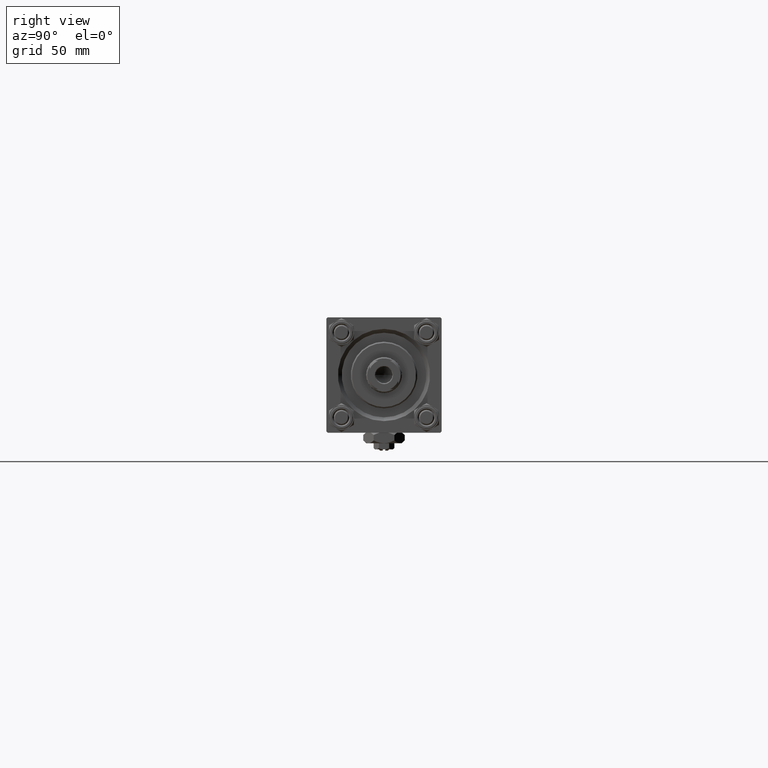
[diagram: clean part render]
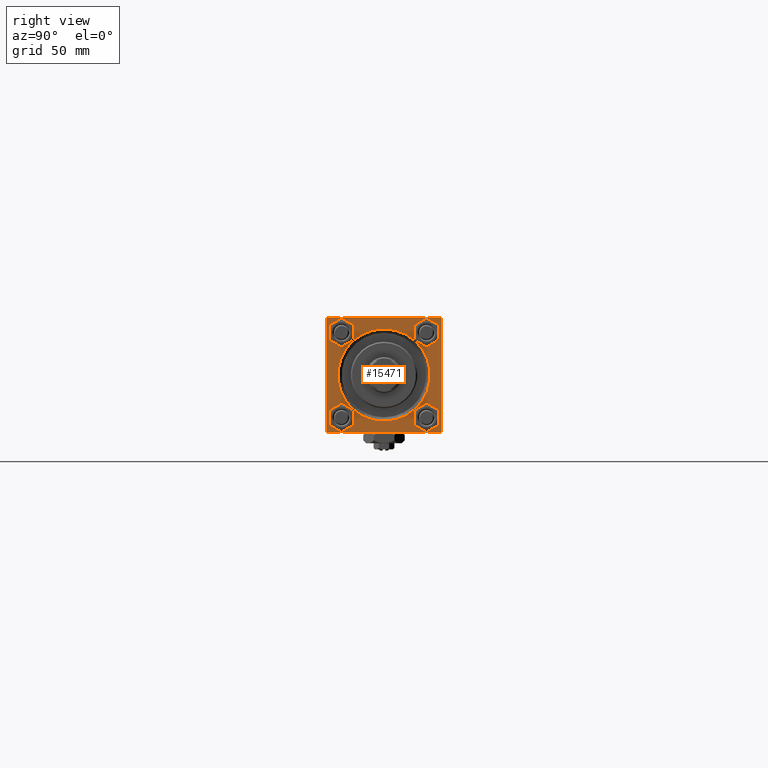
[diagram: same view with one face highlighted and labeled with its STEP entity id]
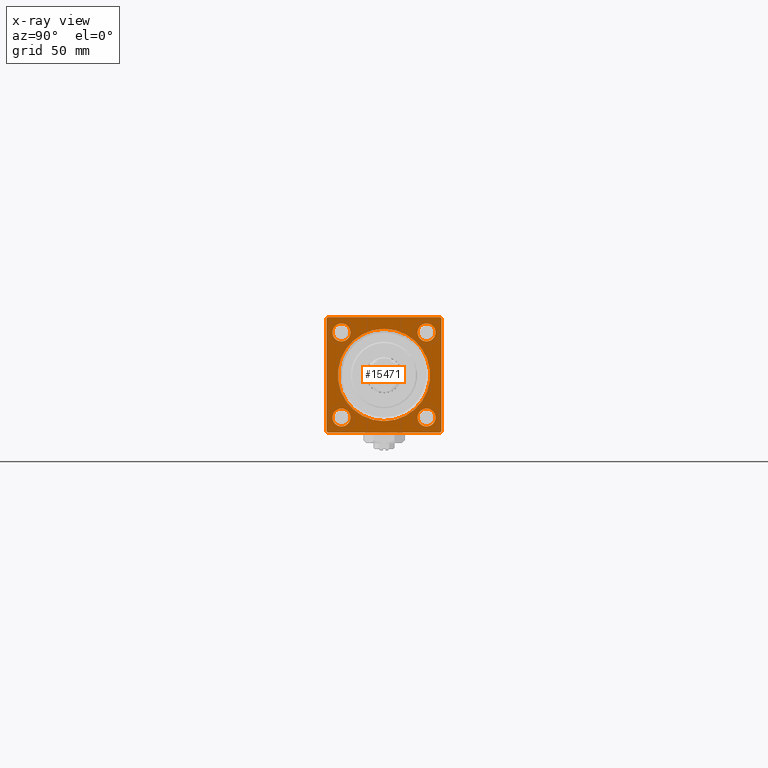
[diagram: x-ray of the same camera — body ghosted, the highlighted face saturated]
A machine part, right view. The second image highlights one B-rep face of the part: STEP entity #15471.
The next image is the same camera in x-ray: the body ghosted, the highlighted face saturated — about 0% of this face is hidden behind the body in this view.
In plain terms, the highlighted planar face has unit normal (-1, 0, 0).
Its self-contained STEP definition (entity closure, byte-faithful):
#45 = ORIENTED_EDGE ( 'NONE', *, *, #5214, .T. ) ;
#60 = EDGE_LOOP ( 'NONE', ( #3234, #50077 ) ) ;
#155 = VERTEX_POINT ( 'NONE', #23417 ) ;
#251 = EDGE_CURVE ( 'NONE', #155, #48153, #30897, .T. ) ;
#597 = DIRECTION ( 'NONE',  ( -1.000000000000000000, 0.000000000000000000, -0.000000000000000000 ) ) ;
#707 = DIRECTION ( 'NONE',  ( 0.000000000000000000, -1.000000000000000000, -2.312964634635742957E-16 ) ) ;
#1269 = CARTESIAN_POINT ( 'NONE',  ( 227.9999999999999716, -16.59999999999999076, 16.60000000000000853 ) ) ;
#1840 = AXIS2_PLACEMENT_3D ( 'NONE', #25262, #33640, #42038 ) ;
#2723 = DIRECTION ( 'NONE',  ( -1.000000000000000000, 0.000000000000000000, -0.000000000000000000 ) ) ;
#2798 = DIRECTION ( 'NONE',  ( 0.000000000000000000, 0.000000000000000000, 1.000000000000000000 ) ) ;
#3152 = EDGE_CURVE ( 'NONE', #6648, #32082, #46947, .T. ) ;
#3158 = VERTEX_POINT ( 'NONE', #16519 ) ;
#3194 = VECTOR ( 'NONE', #20177, 1000.000000000000000 ) ;
#3234 = ORIENTED_EDGE ( 'NONE', *, *, #18331, .T. ) ;
#3667 = LINE ( 'NONE', #19665, #24158 ) ;
#4041 = CARTESIAN_POINT ( 'NONE',  ( 227.9999999999999716, -16.59999999999999076, 13.09999999999997655 ) ) ;
#4297 = CARTESIAN_POINT ( 'NONE',  ( 227.9999999999999716, 16.59999999999999787, 16.60000000000000497 ) ) ;
#4561 = ORIENTED_EDGE ( 'NONE', *, *, #49443, .T. ) ;
#5005 = DIRECTION ( 'NONE',  ( -0.000000000000000000, -0.7071067811865474617, -0.7071067811865474617 ) ) ;
#5214 = EDGE_CURVE ( 'NONE', #22533, #34364, #28836, .T. ) ;
#5223 = ORIENTED_EDGE ( 'NONE', *, *, #50615, .T. ) ;
#5445 = AXIS2_PLACEMENT_3D ( 'NONE', #22400, #2723, #17953 ) ;
#5799 = EDGE_LOOP ( 'NONE', ( #5223, #15051 ) ) ;
#6468 = FACE_BOUND ( 'NONE', #21269, .T. ) ;
#6648 = VERTEX_POINT ( 'NONE', #34011 ) ;
#7162 = VERTEX_POINT ( 'NONE', #4041 ) ;
#7224 = EDGE_CURVE ( 'NONE', #48153, #155, #11855, .T. ) ;
#7312 = VECTOR ( 'NONE', #5005, 1000.000000000000114 ) ;
#7322 = LINE ( 'NONE', #27509, #7965 ) ;
#7460 = AXIS2_PLACEMENT_3D ( 'NONE', #47774, #7874, #32241 ) ;
#7799 = LINE ( 'NONE', #23790, #50780 ) ;
#7874 = DIRECTION ( 'NONE',  ( -1.000000000000000000, 0.000000000000000000, -0.000000000000000000 ) ) ;
#7965 = VECTOR ( 'NONE', #32214, 1000.000000000000000 ) ;
#8639 = VECTOR ( 'NONE', #44062, 1000.000000000000000 ) ;
#8939 = CIRCLE ( 'NONE', #38239, 3.500000000000031086 ) ;
#9467 = VERTEX_POINT ( 'NONE', #37028 ) ;
#9507 = CIRCLE ( 'NONE', #38790, 3.500000000000031086 ) ;
#10003 = VERTEX_POINT ( 'NONE', #35810 ) ;
#10321 = CARTESIAN_POINT ( 'NONE',  ( 227.9999999999999716, 22.00000000000000355, -22.49999999999999645 ) ) ;
#11242 = CARTESIAN_POINT ( 'NONE',  ( 227.9999999999999716, -22.49999999999999645, -21.99999999999995026 ) ) ;
#11855 = CIRCLE ( 'NONE', #1840, 3.500000000000031086 ) ;
#12128 = DIRECTION ( 'NONE',  ( 0.000000000000000000, 0.000000000000000000, 1.000000000000000000 ) ) ;
#12148 = AXIS2_PLACEMENT_3D ( 'NONE', #32898, #28969, #25290 ) ;
#12167 = EDGE_CURVE ( 'NONE', #29171, #7162, #9507, .T. ) ;
#13518 = DIRECTION ( 'NONE',  ( 0.000000000000000000, 0.000000000000000000, 1.000000000000000000 ) ) ;
#14174 = ORIENTED_EDGE ( 'NONE', *, *, #26700, .T. ) ;
#14743 = EDGE_CURVE ( 'NONE', #25073, #45076, #23865, .T. ) ;
#14832 = EDGE_CURVE ( 'NONE', #45076, #25073, #50702, .T. ) ;
#15051 = ORIENTED_EDGE ( 'NONE', *, *, #29678, .T. ) ;
#15121 = EDGE_CURVE ( 'NONE', #22533, #15320, #7322, .T. ) ;
#15250 = CARTESIAN_POINT ( 'NONE',  ( 227.9999999999999716, -16.59999999999999076, 20.10000000000003695 ) ) ;
#15320 = VERTEX_POINT ( 'NONE', #46151 ) ;
#15376 = VERTEX_POINT ( 'NONE', #22774 ) ;
#15466 = VERTEX_POINT ( 'NONE', #26643 ) ;
#15471 = ADVANCED_FACE ( 'NONE', ( #19044, #46352, #18532, #6468, #42644, #38191 ), #50801, .F. ) ;
#16097 = DIRECTION ( 'NONE',  ( 0.000000000000000000, 0.000000000000000000, 1.000000000000000000 ) ) ;
#16284 = CARTESIAN_POINT ( 'NONE',  ( 227.9999999999999716, -22.49999999999999645, 21.99999999999999289 ) ) ;
#16519 = CARTESIAN_POINT ( 'NONE',  ( 227.9999999999999716, -22.49999999999999645, 21.99999999999999289 ) ) ;
#17384 = CARTESIAN_POINT ( 'NONE',  ( 227.9999999999999716, 0.000000000000000000, -18.00000000000004263 ) ) ;
#17586 = CIRCLE ( 'NONE', #41012, 3.500000000000031086 ) ;
#17765 = CARTESIAN_POINT ( 'NONE',  ( 227.9999999999999716, 16.59999999999999787, 13.09999999999997300 ) ) ;
#17953 = DIRECTION ( 'NONE',  ( 0.000000000000000000, 0.000000000000000000, 1.000000000000000000 ) ) ;
#18331 = EDGE_CURVE ( 'NONE', #32082, #6648, #23982, .T. ) ;
#18532 = FACE_BOUND ( 'NONE', #60, .T. ) ;
#19044 = FACE_BOUND ( 'NONE', #5799, .T. ) ;
#19665 = CARTESIAN_POINT ( 'NONE',  ( 227.9999999999999716, 21.99999999999997513, 22.50000000000000355 ) ) ;
#20177 = DIRECTION ( 'NONE',  ( 0.000000000000000000, 0.000000000000000000, -1.000000000000000000 ) ) ;
#21211 = DIRECTION ( 'NONE',  ( 0.000000000000000000, 0.000000000000000000, -1.000000000000000000 ) ) ;
#21269 = EDGE_LOOP ( 'NONE', ( #42969, #37765 ) ) ;
#22321 = VERTEX_POINT ( 'NONE', #23255 ) ;
#22400 = CARTESIAN_POINT ( 'NONE',  ( 227.9999999999999716, 0.000000000000000000, 0.000000000000000000 ) ) ;
#22533 = VERTEX_POINT ( 'NONE', #10321 ) ;
#22682 = VECTOR ( 'NONE', #48286, 1000.000000000000114 ) ;
#22774 = CARTESIAN_POINT ( 'NONE',  ( 227.9999999999999716, -16.59999999999999076, -20.10000000000003695 ) ) ;
#23255 = CARTESIAN_POINT ( 'NONE',  ( 227.9999999999999716, -16.59999999999999076, -13.09999999999997655 ) ) ;
#23417 = CARTESIAN_POINT ( 'NONE',  ( 227.9999999999999716, 16.59999999999999787, -20.10000000000003340 ) ) ;
#23790 = CARTESIAN_POINT ( 'NONE',  ( 227.9999999999999716, 22.50000000000000355, 22.50000000000000355 ) ) ;
#23865 = CIRCLE ( 'NONE', #12148, 18.00000000000004263 ) ;
#23982 = CIRCLE ( 'NONE', #34014, 3.500000000000031086 ) ;
#24107 = LINE ( 'NONE', #40091, #3194 ) ;
#24158 = VECTOR ( 'NONE', #35654, 1000.000000000000000 ) ;
#25073 = VERTEX_POINT ( 'NONE', #46448 ) ;
#25262 = CARTESIAN_POINT ( 'NONE',  ( 227.9999999999999716, 16.59999999999999787, -16.60000000000000497 ) ) ;
#25290 = DIRECTION ( 'NONE',  ( 0.000000000000000000, 0.000000000000000000, 1.000000000000000000 ) ) ;
#25387 = DIRECTION ( 'NONE',  ( -1.000000000000000000, 0.000000000000000000, -0.000000000000000000 ) ) ;
#26174 = EDGE_CURVE ( 'NONE', #9467, #15466, #3667, .T. ) ;
#26431 = ORIENTED_EDGE ( 'NONE', *, *, #15121, .F. ) ;
#26643 = CARTESIAN_POINT ( 'NONE',  ( 227.9999999999999716, 21.99999999999997513, 22.50000000000000355 ) ) ;
#26700 = EDGE_CURVE ( 'NONE', #3158, #33815, #24107, .T. ) ;
#27187 = AXIS2_PLACEMENT_3D ( 'NONE', #30325, #30069, #50541 ) ;
#27509 = CARTESIAN_POINT ( 'NONE',  ( 227.9999999999999716, 22.50000000000000355, -22.49999999999999645 ) ) ;
#27563 = AXIS2_PLACEMENT_3D ( 'NONE', #31546, #597, #12128 ) ;
#28282 = AXIS2_PLACEMENT_3D ( 'NONE', #30853, #38708, #2798 ) ;
#28327 = CARTESIAN_POINT ( 'NONE',  ( 227.9999999999999716, 22.50000000000000355, -21.99999999999999645 ) ) ;
#28836 = LINE ( 'NONE', #28327, #22682 ) ;
#28969 = DIRECTION ( 'NONE',  ( -1.000000000000000000, 0.000000000000000000, -0.000000000000000000 ) ) ;
#29171 = VERTEX_POINT ( 'NONE', #15250 ) ;
#29678 = EDGE_CURVE ( 'NONE', #22321, #15376, #17586, .T. ) ;
#30069 = DIRECTION ( 'NONE',  ( -1.000000000000000000, 0.000000000000000000, -0.000000000000000000 ) ) ;
#30325 = CARTESIAN_POINT ( 'NONE',  ( 227.9999999999999716, 0.000000000000000000, 0.000000000000000000 ) ) ;
#30833 = ORIENTED_EDGE ( 'NONE', *, *, #34297, .F. ) ;
#30853 = CARTESIAN_POINT ( 'NONE',  ( 227.9999999999999716, -16.59999999999999076, -16.60000000000000853 ) ) ;
#30897 = CIRCLE ( 'NONE', #27563, 3.500000000000031086 ) ;
#31211 = VECTOR ( 'NONE', #21211, 1000.000000000000000 ) ;
#31313 = DIRECTION ( 'NONE',  ( -1.000000000000000000, 0.000000000000000000, -0.000000000000000000 ) ) ;
#31546 = CARTESIAN_POINT ( 'NONE',  ( 227.9999999999999716, 16.59999999999999787, -16.60000000000000497 ) ) ;
#31599 = ORIENTED_EDGE ( 'NONE', *, *, #42482, .T. ) ;
#32082 = VERTEX_POINT ( 'NONE', #17765 ) ;
#32214 = DIRECTION ( 'NONE',  ( 0.000000000000000000, -1.000000000000000000, -7.709882115452476934E-17 ) ) ;
#32241 = DIRECTION ( 'NONE',  ( 0.000000000000000000, 0.000000000000000000, 1.000000000000000000 ) ) ;
#32898 = CARTESIAN_POINT ( 'NONE',  ( 227.9999999999999716, 0.000000000000000000, 0.000000000000000000 ) ) ;
#33640 = DIRECTION ( 'NONE',  ( -1.000000000000000000, 0.000000000000000000, -0.000000000000000000 ) ) ;
#33815 = VERTEX_POINT ( 'NONE', #11242 ) ;
#33998 = ORIENTED_EDGE ( 'NONE', *, *, #35037, .T. ) ;
#34011 = CARTESIAN_POINT ( 'NONE',  ( 227.9999999999999716, 16.59999999999999787, 20.10000000000003340 ) ) ;
#34014 = AXIS2_PLACEMENT_3D ( 'NONE', #4297, #47876, #47091 ) ;
#34297 = EDGE_CURVE ( 'NONE', #9467, #34364, #41145, .T. ) ;
#34364 = VERTEX_POINT ( 'NONE', #34807 ) ;
#34807 = CARTESIAN_POINT ( 'NONE',  ( 227.9999999999999716, 22.50000000000000355, -21.99999999999998224 ) ) ;
#35037 = EDGE_CURVE ( 'NONE', #33815, #15320, #48542, .T. ) ;
#35636 = ORIENTED_EDGE ( 'NONE', *, *, #7224, .T. ) ;
#35654 = DIRECTION ( 'NONE',  ( 0.000000000000000000, -0.7071067811865672237, 0.7071067811865279218 ) ) ;
#35810 = CARTESIAN_POINT ( 'NONE',  ( 227.9999999999999716, -21.99999999999998224, 22.49999999999999289 ) ) ;
#37028 = CARTESIAN_POINT ( 'NONE',  ( 227.9999999999999716, 22.50000000000000355, 22.00000000000000355 ) ) ;
#37765 = ORIENTED_EDGE ( 'NONE', *, *, #12167, .T. ) ;
#37943 = EDGE_LOOP ( 'NONE', ( #14174, #33998, #26431, #45, #30833, #39774, #31599, #4561 ) ) ;
#38191 = FACE_OUTER_BOUND ( 'NONE', #37943, .T. ) ;
#38239 = AXIS2_PLACEMENT_3D ( 'NONE', #41309, #41837, #13518 ) ;
#38708 = DIRECTION ( 'NONE',  ( -1.000000000000000000, 0.000000000000000000, -0.000000000000000000 ) ) ;
#38790 = AXIS2_PLACEMENT_3D ( 'NONE', #1269, #25387, #44548 ) ;
#39774 = ORIENTED_EDGE ( 'NONE', *, *, #26174, .T. ) ;
#39856 = CARTESIAN_POINT ( 'NONE',  ( 227.9999999999999716, -21.99999999999996803, -22.50000000000000000 ) ) ;
#40091 = CARTESIAN_POINT ( 'NONE',  ( 227.9999999999999716, -22.49999999999999645, 22.49999999999999289 ) ) ;
#41012 = AXIS2_PLACEMENT_3D ( 'NONE', #51268, #31313, #16097 ) ;
#41145 = LINE ( 'NONE', #45092, #31211 ) ;
#41309 = CARTESIAN_POINT ( 'NONE',  ( 227.9999999999999716, -16.59999999999999076, 16.60000000000000853 ) ) ;
#41837 = DIRECTION ( 'NONE',  ( -1.000000000000000000, 0.000000000000000000, -0.000000000000000000 ) ) ;
#42038 = DIRECTION ( 'NONE',  ( 0.000000000000000000, 0.000000000000000000, 1.000000000000000000 ) ) ;
#42482 = EDGE_CURVE ( 'NONE', #15466, #10003, #7799, .T. ) ;
#42644 = FACE_BOUND ( 'NONE', #49025, .T. ) ;
#42969 = ORIENTED_EDGE ( 'NONE', *, *, #43643, .T. ) ;
#43643 = EDGE_CURVE ( 'NONE', #7162, #29171, #8939, .T. ) ;
#44062 = DIRECTION ( 'NONE',  ( 0.000000000000000000, 0.7071067811865426878, -0.7071067811865524577 ) ) ;
#44548 = DIRECTION ( 'NONE',  ( 0.000000000000000000, 0.000000000000000000, 1.000000000000000000 ) ) ;
#44605 = LINE ( 'NONE', #16284, #7312 ) ;
#45076 = VERTEX_POINT ( 'NONE', #17384 ) ;
#45092 = CARTESIAN_POINT ( 'NONE',  ( 227.9999999999999716, 22.50000000000000355, 22.50000000000000355 ) ) ;
#46151 = CARTESIAN_POINT ( 'NONE',  ( 227.9999999999999716, -21.99999999999995381, -22.50000000000000000 ) ) ;
#46352 = FACE_BOUND ( 'NONE', #48855, .T. ) ;
#46448 = CARTESIAN_POINT ( 'NONE',  ( 227.9999999999999716, 2.204364238465241344E-15, 18.00000000000004263 ) ) ;
#46947 = CIRCLE ( 'NONE', #7460, 3.500000000000031086 ) ;
#47091 = DIRECTION ( 'NONE',  ( 0.000000000000000000, 0.000000000000000000, 1.000000000000000000 ) ) ;
#47774 = CARTESIAN_POINT ( 'NONE',  ( 227.9999999999999716, 16.59999999999999787, 16.60000000000000497 ) ) ;
#47876 = DIRECTION ( 'NONE',  ( -1.000000000000000000, 0.000000000000000000, -0.000000000000000000 ) ) ;
#48153 = VERTEX_POINT ( 'NONE', #51521 ) ;
#48184 = ORIENTED_EDGE ( 'NONE', *, *, #14832, .T. ) ;
#48286 = DIRECTION ( 'NONE',  ( -0.000000000000000000, 0.7071067811865474617, 0.7071067811865474617 ) ) ;
#48419 = CIRCLE ( 'NONE', #28282, 3.500000000000031086 ) ;
#48542 = LINE ( 'NONE', #39856, #8639 ) ;
#48832 = ORIENTED_EDGE ( 'NONE', *, *, #14743, .T. ) ;
#48855 = EDGE_LOOP ( 'NONE', ( #49210, #35636 ) ) ;
#49025 = EDGE_LOOP ( 'NONE', ( #48184, #48832 ) ) ;
#49210 = ORIENTED_EDGE ( 'NONE', *, *, #251, .T. ) ;
#49443 = EDGE_CURVE ( 'NONE', #10003, #3158, #44605, .T. ) ;
#50077 = ORIENTED_EDGE ( 'NONE', *, *, #3152, .T. ) ;
#50541 = DIRECTION ( 'NONE',  ( -0.000000000000000000, 0.000000000000000000, 1.000000000000000000 ) ) ;
#50615 = EDGE_CURVE ( 'NONE', #15376, #22321, #48419, .T. ) ;
#50702 = CIRCLE ( 'NONE', #5445, 18.00000000000004263 ) ;
#50780 = VECTOR ( 'NONE', #707, 1000.000000000000000 ) ;
#50801 = PLANE ( 'NONE',  #27187 ) ;
#51268 = CARTESIAN_POINT ( 'NONE',  ( 227.9999999999999716, -16.59999999999999076, -16.60000000000000853 ) ) ;
#51521 = CARTESIAN_POINT ( 'NONE',  ( 227.9999999999999716, 16.59999999999999787, -13.09999999999997300 ) ) ;